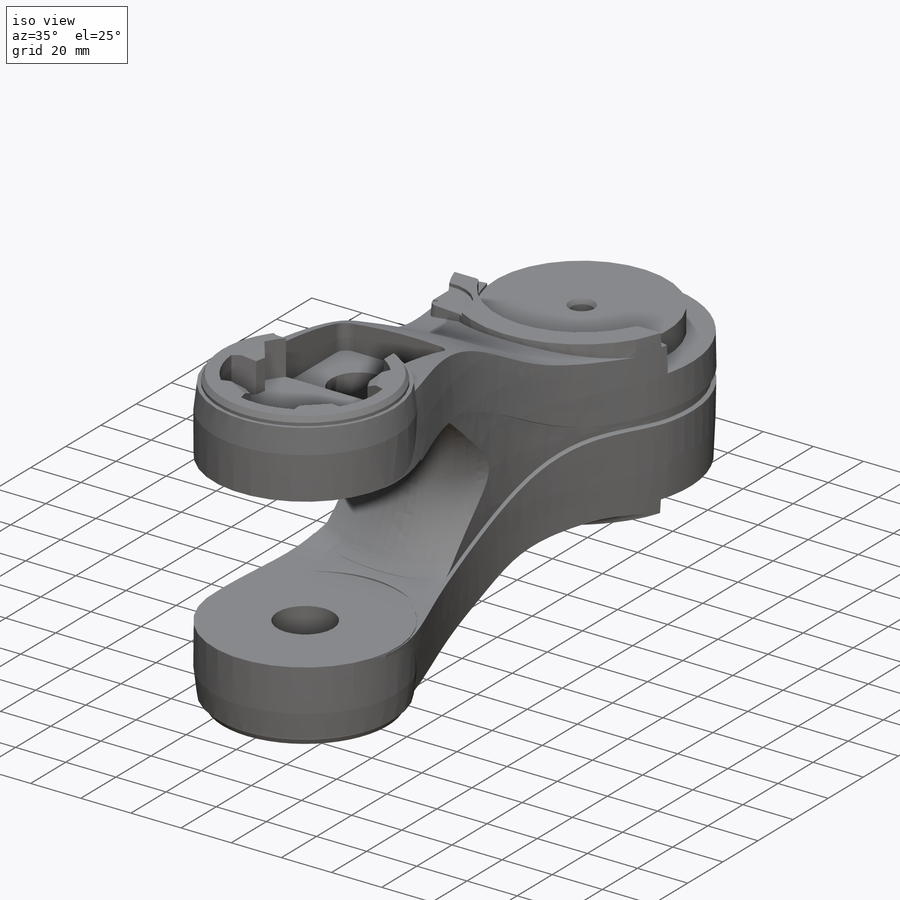
[diagram: iso view]
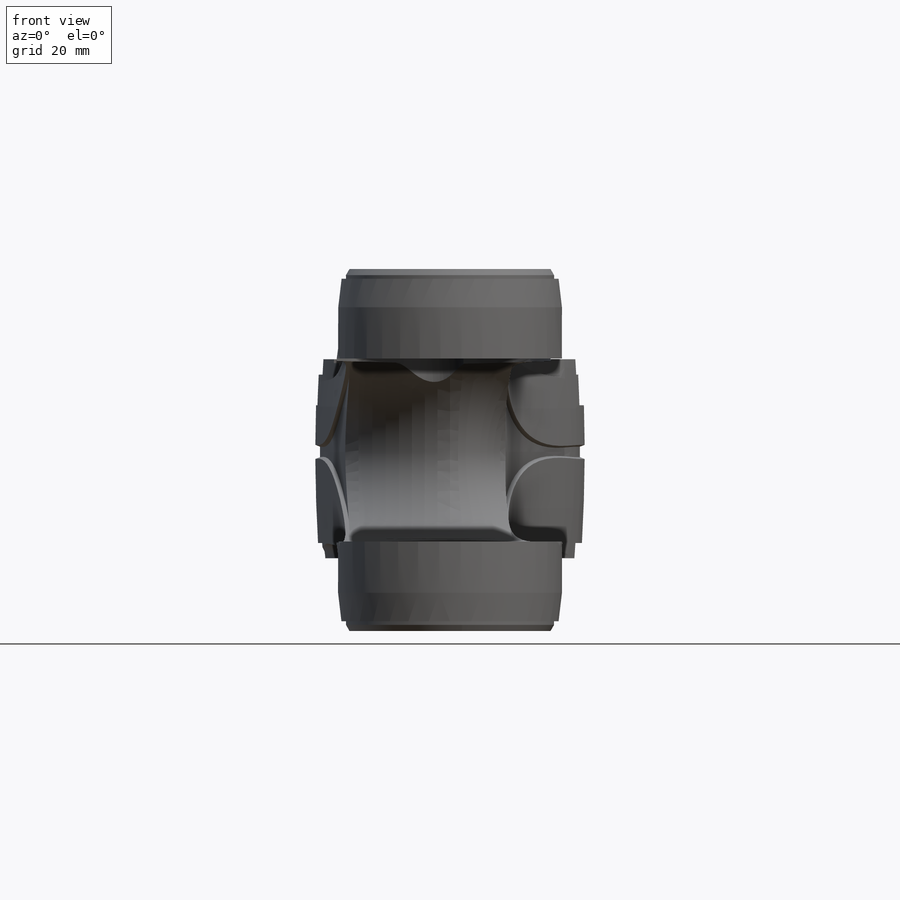
[diagram: front view]
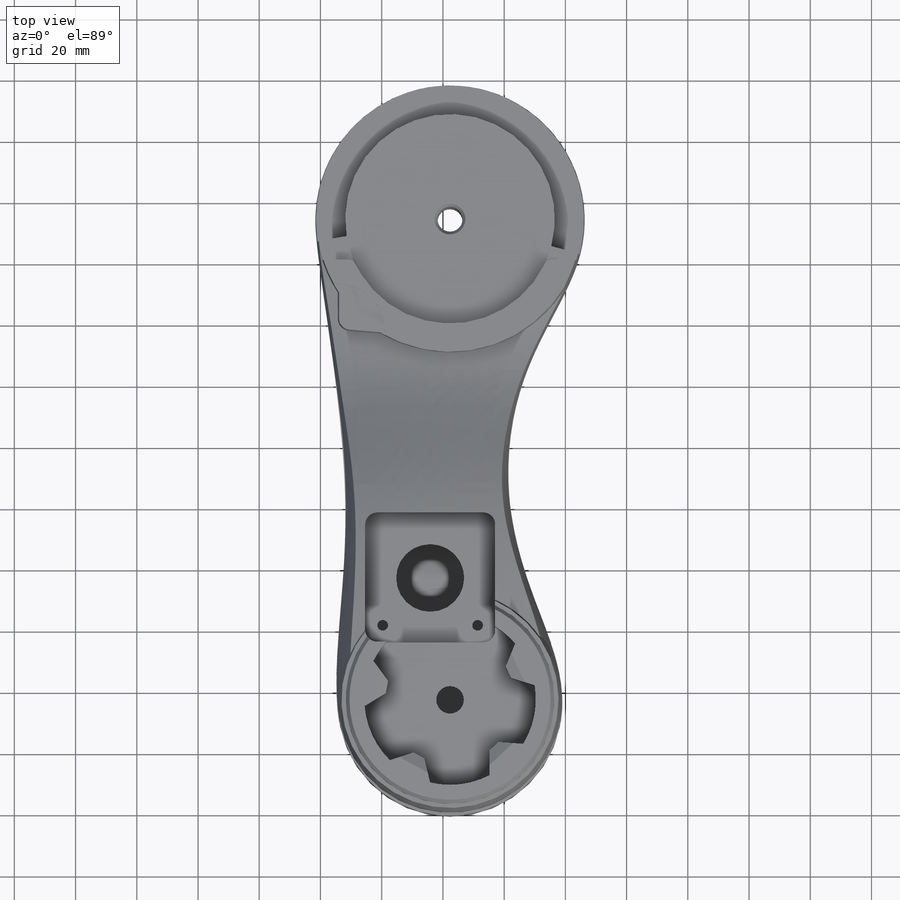
[diagram: top view]
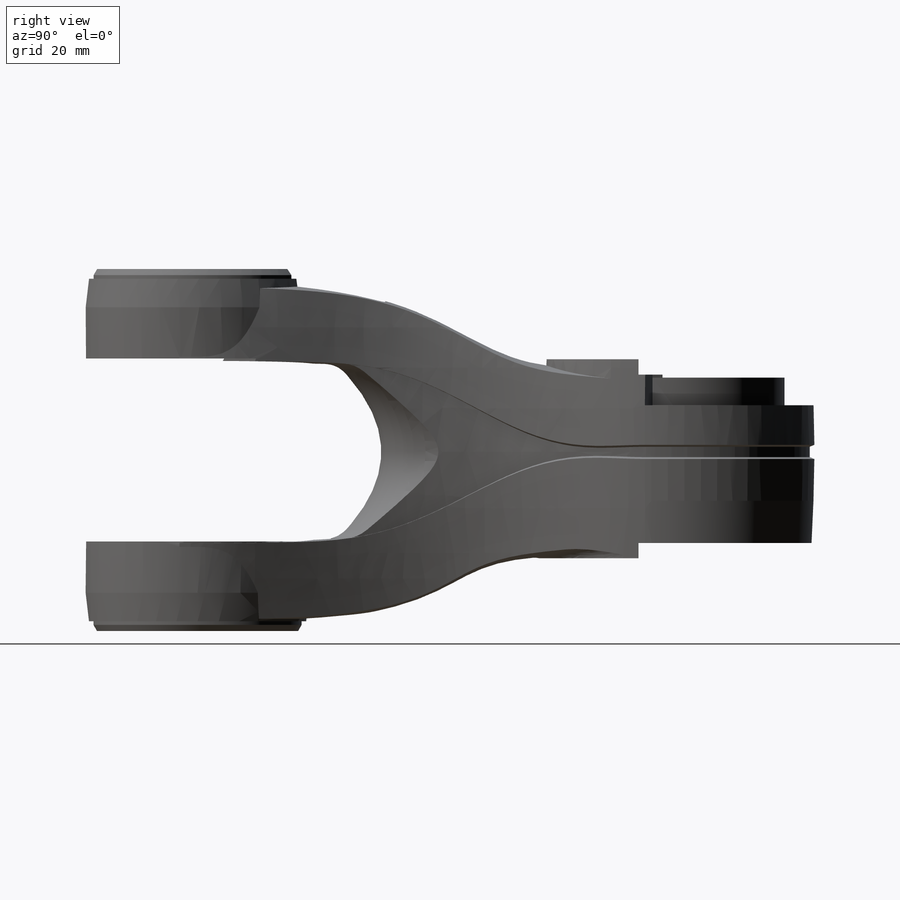
[diagram: right view]
SOLIDWORKS PART (.sldprt)
format: sldprt  version: not decoded by parser v0  size: 4,182,016 bytes
history: native  units: mm
features: sketch x38, cut_extrude x30, plane x16, extrude x6, chamfer x5, mirror x4, fillet x2, material x1, revolve x1, move_body x1, sweep x1 (+10 scaffold rows collapsed)
feature tree (115):
  scaffold x10  (default folders/planes/origin — collapsed)
  material  "Material <not specified>"
  plane  "Płaszczyzna przednia"
  plane  "Płaszczyzna górna"
  plane  "Płaszczyzna prawa"
  plane  "Płaszczyzna1"  Offset=530mm
  sketch  "Szkic2"  dims[D1=68.5mm]
  cut_extrude  "Wytnij-wyciągnięcie2"  Depth=6mm
  sketch  "Szkic3"  dims[D1=68.5mm]
  cut_extrude  "Wytnij-wyciągnięcie3"  Depth=6mm
  plane  "Płaszczyzna2"  Offset=50mm
  sketch  "Szkic4"
  cut_extrude  "Wytnij-wyciągnięcie4"  [1 undecoded]
  plane  "Płaszczyzna3"
  mirror  "Lustro1"
  sketch  "Szkic5"  dims[D1=8.05mm]
  cut_extrude  "Wytnij-wyciągnięcie5"  [1 undecoded]
  chamfer  "Sfazowanie1"  Distance=1mm Angle=60deg
  chamfer  "Sfazowanie2"  Distance=1mm Angle=60deg
  fillet  "Zaokrąglenie1"  Radius=2mm
  plane  "Płaszczyzna4"
  plane  "Płaszczyzna5"  Offset=70mm
  sketch  "Szkic6"  dims[D1=22.2mm]
  cut_extrude  "Wytnij-wyciągnięcie6"  Depth=100mm
  sketch  "Szkic21"  dims[D1=9.0mm]
  cut_extrude  "Wytnij-wyciągnięcie22"  Depth=30mm
  plane  "Płaszczyzna6"
  sketch  "Szkic7"  dims[D2=4.0mm D1=42.5mm D3=6.5mm D4=40.0mm]
  cut_extrude  "Wytnij-wyciągnięcie7"  Depth=18mm
  sketch  "Szkic22"  dims[D1=22.2mm]
  cut_extrude  "Wytnij-wyciągnięcie23"  Depth=30mm
  sketch  "Szkic23"  dims[D3=3.5mm D1=31.0mm D2=31.0mm]
  cut_extrude  "Wytnij-wyciągnięcie24"  Depth=30mm
  sketch  "Szkic24"  dims[D1=6.0mm]
  cut_extrude  "Wytnij-wyciągnięcie25"  Depth=10mm
  plane  "Płaszczyzna7"  Offset=100mm
  sketch  "Szkic11"
  cut_extrude  "Wytnij-wyciągnięcie11"  [1 undecoded]
  sketch  "Szkic12"
  cut_extrude  "Wytnij-wyciągnięcie13"  [1 undecoded]
  plane  "Płaszczyzna8"
  sketch  "Szkic14"  dims[c1.D4=~80.851456mm c1.D6=2.0mm c1.D1=2.5mm c1.D2=2.95mm c1.D3=1.4mm c1.D5=0.8mm c1.D7=6.0deg c2.D5=6.0deg c2.D9=2.3mm c2.D6=6.0deg c2.D11=6.0deg c2.D8=12.0 c2.D10=11.0]
  cut_extrude  "Wytnij-wyciągnięcie16"  Depth=10mm
  sketch  "Szkic1"
  cut_extrude  "Wytnij-wyciągnięcie1"  [1 undecoded]
  cut_extrude  "Wytnij-wyciągnięcie37"  [1 undecoded]
  sketch  "Szkic1<4>"
  cut_extrude  "Wytnij-wyciągnięcie27"  [1 undecoded]
  sketch  "Szkic1<2>"
  fillet  "Oś2"  Radius=3mm
  plane  "Płaszczyzna9"  Offset=6mm
  sketch  "Szkic26"  dims[D1=5.0mm]
  cut_extrude  "Wytnij-wyciągnięcie26"  Depth=12mm
  extrude  "Dodanie-wyciągnięcie1"  [1 undecoded]
  sketch  "Szkic26<2>"  dims[D1=10.0mm]
  plane  "Płaszczyzna14"  Offset=10mm
  sketch  "Szkic42"  dims[D1=5.0mm]
  extrude  "Dodanie-wyciągnięcie5"  Depth=8mm
  chamfer  "Sfazowanie5"  Distance=1mm Angle=45deg
  sketch  "Szkic15"
  cut_extrude  "Wytnij-wyciągnięcie17"  Depth=10mm
  sketch  "Szkic18"
  cut_extrude  "Wytnij-wyciągnięcie20"  Depth=2mm
  sketch  "Szkic27"
  cut_extrude  "Wytnij-wyciągnięcie28"  Depth=12mm
  sketch  "Szkic28"
  cut_extrude  "Wytnij-wyciągnięcie29"  Depth=14mm
  sketch  "Szkic29"  dims[D1=70.0mm]
  cut_extrude  "Wytnij-wyciągnięcie30"  Depth=12mm
  sketch  "Szkic43"  dims[D2=0.2mm D1=0.0mm]
  extrude  "Dodanie-wyciągnięcie6"  Depth=2mm
  sketch  "Szkic30"  dims[c1.D2=56.0mm c1.D1=68.0mm c1.D3=15.0mm c1.D4=7.0mm c1.D5=4.0mm c2.D1=0.0mm c2.D6=5.0]
  extrude  "Dodanie-wyciągnięcie2"  Depth=14mm
  sketch  "Szkic31"
  extrude  "Dodanie-wyciągnięcie3"  Depth=3mm
  chamfer  "Sfazowanie3"  Distance=3.5mm Angle=30deg
  chamfer  "Sfazowanie4"  Distance=2mm Angle=30deg
  plane  "Płaszczyzna10"
  sketch  "Szkic33"  dims[D1=68.2mm]
  revolve  "Obrót1"  Angle=360deg
  sketch  "Szkic34"  dims[D1=0.0mm D2=5.0]
  extrude  "Dodanie-wyciągnięcie4"  Depth=3mm
  sketch  "Szkic35"  dims[D2=5.0mm D3=5.0mm D1=22.0mm]
  cut_extrude  "Wytnij-wyciągnięcie31"  Depth=3mm
  mirror  "Lustro2"
  sketch  "Szkic36"  dims[D1=0.0mm]
  cut_extrude  "Wytnij-wyciągnięcie32"  Depth=20mm
  sketch  "Szkic37"
  cut_extrude  "Wytnij-wyciągnięcie33"  Depth=20mm
  sketch  "Szkic38"  dims[D1=0.0mm]
  cut_extrude  "Wytnij-wyciągnięcie34"  Depth=3mm
  mirror  "Lustro3"
  move_body  "Obiekt-Przenieś/Kopiuj1"
  sketch  "Szkic39"  dims[D1=0.0mm]
  cut_extrude  "Wytnij-wyciągnięcie35"  [1 undecoded]
  sketch  "Szkic40"
  cut_extrude  "Wytnij-wyciągnięcie36"  Depth=10mm
  plane  "Płaszczyzna12"
  mirror  "Lustro4"
  plane  "Płaszczyzna13"
  sketch  "Szkic41"
  sweep  "Wyciągnięcie po ścieżce4"
  sketch  "Szkic44"  dims[D1=9.0mm]
  cut_extrude  "Wytnij-wyciągnięcie38"  Depth=12mm
  sketch  "Szkic45"  dims[D1=0.05mm]
  cut_extrude  "Wytnij-wyciągnięcie39"  [1 undecoded]
decode coverage: 58 of 88 modeling features carry decoded parameters
note: ~ marks probable driven/reference dimensions
note: 10 parameter values undecoded
summary: no parameter record found for 10 features
note: suppression state not decoded; provenance and decode notes live in map.json
